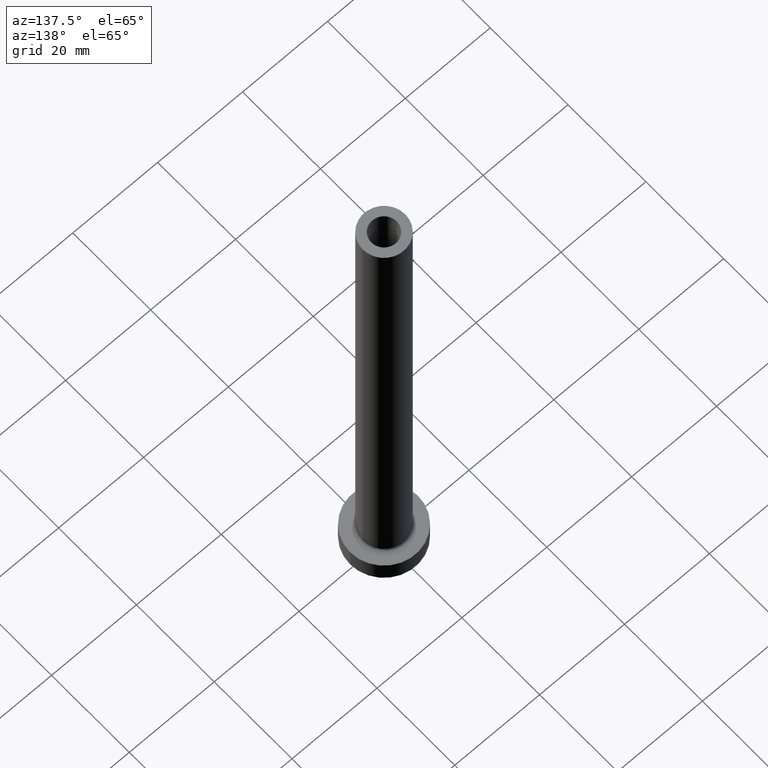
[diagram: clean part render]
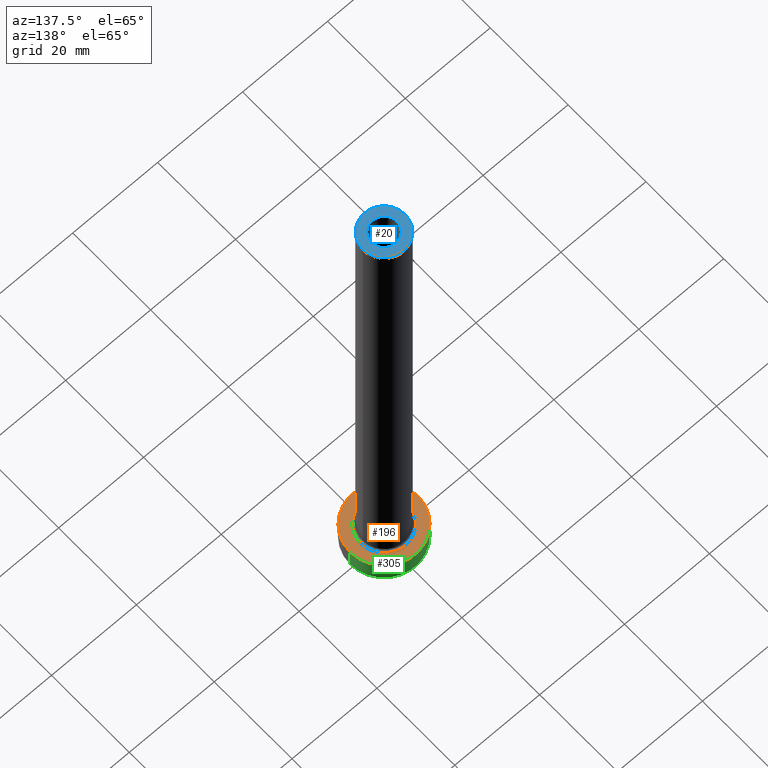
[diagram: same view with three faces highlighted in distinct colors, each labeled with its STEP entity id]
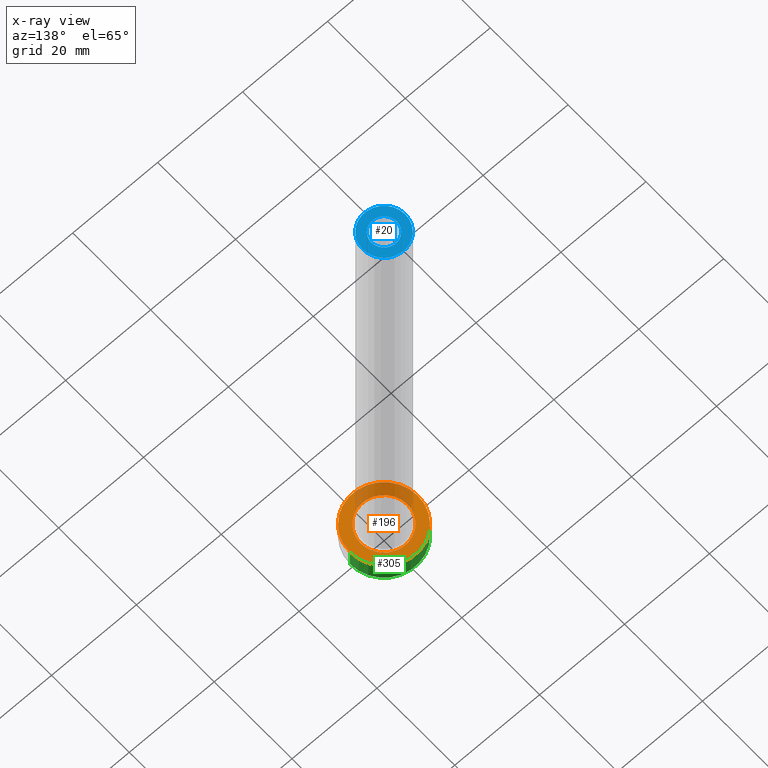
[diagram: x-ray of the same camera — body ghosted, the three highlighted faces saturated]
A machine part, auxiliary view with three faces highlighted in distinct colors.
The next image is the same camera in x-ray (body ghosted, the three faces saturated) — at least one of them is partly hidden behind the body in this view.
Their STEP definitions:

[orange] entity #196 — the highlighted planar face has unit normal (0, 0, 1).
#25 = ORIENTED_EDGE ( 'NONE', *, *, #400, .T. ) ;
#33 = DIRECTION ( 'NONE',  ( -0.000000000000000000, -0.000000000000000000, -1.000000000000000000 ) ) ;
#52 = CARTESIAN_POINT ( 'NONE',  ( 0.000000000000000000, 0.000000000000000000, 5.000000000000000000 ) ) ;
#63 = CARTESIAN_POINT ( 'NONE',  ( 0.000000000000000000, 0.000000000000000000, 5.000000000000000000 ) ) ;
#71 = DIRECTION ( 'NONE',  ( 0.000000000000000000, 0.000000000000000000, 1.000000000000000000 ) ) ;
#79 = EDGE_CURVE ( 'NONE', #93, #264, #250, .T. ) ;
#88 = ORIENTED_EDGE ( 'NONE', *, *, #296, .T. ) ;
#92 = CARTESIAN_POINT ( 'NONE',  ( -8.000000000000000000, 0.000000000000000000, 5.000000000000000000 ) ) ;
#93 = VERTEX_POINT ( 'NONE', #171 ) ;
#94 = CARTESIAN_POINT ( 'NONE',  ( 5.500000000000000000, 0.000000000000000000, 5.000000000000002665 ) ) ;
#104 = DIRECTION ( 'NONE',  ( 1.000000000000000000, 0.000000000000000000, 0.000000000000000000 ) ) ;
#105 = PLANE ( 'NONE',  #122 ) ;
#122 = AXIS2_PLACEMENT_3D ( 'NONE', #63, #386, #325 ) ;
#144 = FACE_OUTER_BOUND ( 'NONE', #326, .T. ) ;
#149 = AXIS2_PLACEMENT_3D ( 'NONE', #52, #416, #333 ) ;
#157 = EDGE_LOOP ( 'NONE', ( #25, #361 ) ) ;
#171 = CARTESIAN_POINT ( 'NONE',  ( -5.500000000000000000, 6.735557395310442023E-16, 5.000000000000002665 ) ) ;
#174 = VERTEX_POINT ( 'NONE', #374 ) ;
#187 = CIRCLE ( 'NONE', #241, 8.000000000000000000 ) ;
#196 = ADVANCED_FACE ( 'NONE', ( #408, #144 ), #105, .T. ) ;
#215 = AXIS2_PLACEMENT_3D ( 'NONE', #393, #71, #104 ) ;
#217 = DIRECTION ( 'NONE',  ( 0.000000000000000000, 0.000000000000000000, 1.000000000000000000 ) ) ;
#239 = CARTESIAN_POINT ( 'NONE',  ( 0.000000000000000000, 0.000000000000000000, 5.000000000000000000 ) ) ;
#241 = AXIS2_PLACEMENT_3D ( 'NONE', #432, #217, #320 ) ;
#248 = VERTEX_POINT ( 'NONE', #92 ) ;
#250 = CIRCLE ( 'NONE', #293, 5.500000000000000000 ) ;
#264 = VERTEX_POINT ( 'NONE', #94 ) ;
#288 = EDGE_CURVE ( 'NONE', #248, #174, #187, .T. ) ;
#293 = AXIS2_PLACEMENT_3D ( 'NONE', #239, #33, #312 ) ;
#296 = EDGE_CURVE ( 'NONE', #174, #248, #350, .T. ) ;
#312 = DIRECTION ( 'NONE',  ( 1.000000000000000000, 0.000000000000000000, 0.000000000000000000 ) ) ;
#320 = DIRECTION ( 'NONE',  ( 1.000000000000000000, 0.000000000000000000, 0.000000000000000000 ) ) ;
#325 = DIRECTION ( 'NONE',  ( 1.000000000000000000, 0.000000000000000000, -0.000000000000000000 ) ) ;
#326 = EDGE_LOOP ( 'NONE', ( #371, #88 ) ) ;
#333 = DIRECTION ( 'NONE',  ( 1.000000000000000000, 0.000000000000000000, 0.000000000000000000 ) ) ;
#350 = CIRCLE ( 'NONE', #215, 8.000000000000000000 ) ;
#361 = ORIENTED_EDGE ( 'NONE', *, *, #79, .T. ) ;
#364 = CIRCLE ( 'NONE', #149, 5.500000000000000000 ) ;
#371 = ORIENTED_EDGE ( 'NONE', *, *, #288, .T. ) ;
#374 = CARTESIAN_POINT ( 'NONE',  ( 8.000000000000000000, 9.797174393178825657E-16, 5.000000000000000000 ) ) ;
#386 = DIRECTION ( 'NONE',  ( 0.000000000000000000, 0.000000000000000000, 1.000000000000000000 ) ) ;
#393 = CARTESIAN_POINT ( 'NONE',  ( 0.000000000000000000, 0.000000000000000000, 5.000000000000000000 ) ) ;
#400 = EDGE_CURVE ( 'NONE', #264, #93, #364, .T. ) ;
#408 = FACE_BOUND ( 'NONE', #157, .T. ) ;
#416 = DIRECTION ( 'NONE',  ( -0.000000000000000000, -0.000000000000000000, -1.000000000000000000 ) ) ;
#432 = CARTESIAN_POINT ( 'NONE',  ( 0.000000000000000000, 0.000000000000000000, 5.000000000000000000 ) ) ;

[blue] entity #20 — the highlighted planar face has unit normal (0, 0, 1).
#13 = AXIS2_PLACEMENT_3D ( 'NONE', #294, #17, #107 ) ;
#17 = DIRECTION ( 'NONE',  ( 0.000000000000000000, 0.000000000000000000, 1.000000000000000000 ) ) ;
#20 = ADVANCED_FACE ( 'NONE', ( #167, #311 ), #27, .T. ) ;
#27 = PLANE ( 'NONE',  #357 ) ;
#42 = EDGE_CURVE ( 'NONE', #106, #191, #389, .T. ) ;
#43 = AXIS2_PLACEMENT_3D ( 'NONE', #353, #342, #385 ) ;
#53 = ORIENTED_EDGE ( 'NONE', *, *, #42, .T. ) ;
#55 = CIRCLE ( 'NONE', #13, 3.000000000000000444 ) ;
#82 = CARTESIAN_POINT ( 'NONE',  ( 0.000000000000000000, 0.000000000000000000, 125.0000000000000000 ) ) ;
#86 = CIRCLE ( 'NONE', #113, 5.000000000000000000 ) ;
#106 = VERTEX_POINT ( 'NONE', #243 ) ;
#107 = DIRECTION ( 'NONE',  ( 1.000000000000000000, 0.000000000000000000, 0.000000000000000000 ) ) ;
#111 = ORIENTED_EDGE ( 'NONE', *, *, #201, .F. ) ;
#112 = DIRECTION ( 'NONE',  ( 0.000000000000000000, 0.000000000000000000, 1.000000000000000000 ) ) ;
#113 = AXIS2_PLACEMENT_3D ( 'NONE', #82, #206, #362 ) ;
#158 = CIRCLE ( 'NONE', #329, 3.000000000000000444 ) ;
#167 = FACE_BOUND ( 'NONE', #347, .T. ) ;
#176 = CARTESIAN_POINT ( 'NONE',  ( -3.000000000000000444, 0.000000000000000000, 125.0000000000000000 ) ) ;
#185 = EDGE_CURVE ( 'NONE', #232, #271, #158, .T. ) ;
#190 = CARTESIAN_POINT ( 'NONE',  ( 3.000000000000000444, 3.673940397442059868E-16, 125.0000000000000000 ) ) ;
#191 = VERTEX_POINT ( 'NONE', #441 ) ;
#201 = EDGE_CURVE ( 'NONE', #271, #232, #55, .T. ) ;
#206 = DIRECTION ( 'NONE',  ( 0.000000000000000000, 0.000000000000000000, 1.000000000000000000 ) ) ;
#220 = EDGE_CURVE ( 'NONE', #191, #106, #86, .T. ) ;
#232 = VERTEX_POINT ( 'NONE', #190 ) ;
#234 = CARTESIAN_POINT ( 'NONE',  ( 0.000000000000000000, 0.000000000000000000, 125.0000000000000000 ) ) ;
#243 = CARTESIAN_POINT ( 'NONE',  ( 5.000000000000000000, 6.123233995736766282E-16, 125.0000000000000000 ) ) ;
#269 = DIRECTION ( 'NONE',  ( 1.000000000000000000, 0.000000000000000000, -0.000000000000000000 ) ) ;
#271 = VERTEX_POINT ( 'NONE', #176 ) ;
#290 = EDGE_LOOP ( 'NONE', ( #340, #53 ) ) ;
#294 = CARTESIAN_POINT ( 'NONE',  ( 0.000000000000000000, 0.000000000000000000, 125.0000000000000000 ) ) ;
#306 = DIRECTION ( 'NONE',  ( 0.000000000000000000, 0.000000000000000000, 1.000000000000000000 ) ) ;
#311 = FACE_OUTER_BOUND ( 'NONE', #290, .T. ) ;
#329 = AXIS2_PLACEMENT_3D ( 'NONE', #423, #112, #388 ) ;
#340 = ORIENTED_EDGE ( 'NONE', *, *, #220, .T. ) ;
#342 = DIRECTION ( 'NONE',  ( 0.000000000000000000, 0.000000000000000000, 1.000000000000000000 ) ) ;
#347 = EDGE_LOOP ( 'NONE', ( #111, #368 ) ) ;
#353 = CARTESIAN_POINT ( 'NONE',  ( 0.000000000000000000, 0.000000000000000000, 125.0000000000000000 ) ) ;
#357 = AXIS2_PLACEMENT_3D ( 'NONE', #234, #306, #269 ) ;
#362 = DIRECTION ( 'NONE',  ( 1.000000000000000000, 0.000000000000000000, 0.000000000000000000 ) ) ;
#368 = ORIENTED_EDGE ( 'NONE', *, *, #185, .F. ) ;
#385 = DIRECTION ( 'NONE',  ( 1.000000000000000000, 0.000000000000000000, 0.000000000000000000 ) ) ;
#388 = DIRECTION ( 'NONE',  ( 1.000000000000000000, 0.000000000000000000, 0.000000000000000000 ) ) ;
#389 = CIRCLE ( 'NONE', #43, 5.000000000000000000 ) ;
#423 = CARTESIAN_POINT ( 'NONE',  ( 0.000000000000000000, 0.000000000000000000, 125.0000000000000000 ) ) ;
#441 = CARTESIAN_POINT ( 'NONE',  ( -5.000000000000000000, 0.000000000000000000, 125.0000000000000000 ) ) ;

[green] entity #305 — the highlighted cylindrical surface (partial cylindrical patch) has radius 8 mm, axis along (-0, -0, -1).
#1 = VERTEX_POINT ( 'NONE', #303 ) ;
#29 = DIRECTION ( 'NONE',  ( -0.000000000000000000, -0.000000000000000000, -1.000000000000000000 ) ) ;
#36 = EDGE_CURVE ( 'NONE', #1, #380, #257, .T. ) ;
#56 = DIRECTION ( 'NONE',  ( 1.000000000000000000, 0.000000000000000000, 0.000000000000000000 ) ) ;
#57 = CYLINDRICAL_SURFACE ( 'NONE', #263, 8.000000000000000000 ) ;
#61 = ORIENTED_EDGE ( 'NONE', *, *, #36, .T. ) ;
#62 = LINE ( 'NONE', #209, #222 ) ;
#71 = DIRECTION ( 'NONE',  ( 0.000000000000000000, 0.000000000000000000, 1.000000000000000000 ) ) ;
#81 = ORIENTED_EDGE ( 'NONE', *, *, #343, .T. ) ;
#83 = CARTESIAN_POINT ( 'NONE',  ( 8.000000000000000000, 9.797174393178825657E-16, 5.000000000000000000 ) ) ;
#92 = CARTESIAN_POINT ( 'NONE',  ( -8.000000000000000000, 0.000000000000000000, 5.000000000000000000 ) ) ;
#104 = DIRECTION ( 'NONE',  ( 1.000000000000000000, 0.000000000000000000, 0.000000000000000000 ) ) ;
#119 = EDGE_CURVE ( 'NONE', #248, #380, #62, .T. ) ;
#124 = EDGE_LOOP ( 'NONE', ( #365, #81, #61, #132 ) ) ;
#132 = ORIENTED_EDGE ( 'NONE', *, *, #119, .F. ) ;
#174 = VERTEX_POINT ( 'NONE', #374 ) ;
#198 = CARTESIAN_POINT ( 'NONE',  ( -8.000000000000000000, 0.000000000000000000, 0.000000000000000000 ) ) ;
#209 = CARTESIAN_POINT ( 'NONE',  ( -8.000000000000000000, 0.000000000000000000, 5.000000000000000000 ) ) ;
#213 = AXIS2_PLACEMENT_3D ( 'NONE', #238, #376, #56 ) ;
#215 = AXIS2_PLACEMENT_3D ( 'NONE', #393, #71, #104 ) ;
#222 = VECTOR ( 'NONE', #29, 1000.000000000000000 ) ;
#238 = CARTESIAN_POINT ( 'NONE',  ( 0.000000000000000000, 0.000000000000000000, 0.000000000000000000 ) ) ;
#248 = VERTEX_POINT ( 'NONE', #92 ) ;
#257 = CIRCLE ( 'NONE', #213, 8.000000000000000000 ) ;
#263 = AXIS2_PLACEMENT_3D ( 'NONE', #297, #446, #450 ) ;
#296 = EDGE_CURVE ( 'NONE', #174, #248, #350, .T. ) ;
#297 = CARTESIAN_POINT ( 'NONE',  ( 0.000000000000000000, 0.000000000000000000, 5.000000000000000000 ) ) ;
#303 = CARTESIAN_POINT ( 'NONE',  ( 8.000000000000000000, 9.797174393178825657E-16, 0.000000000000000000 ) ) ;
#305 = ADVANCED_FACE ( 'NONE', ( #367 ), #57, .T. ) ;
#343 = EDGE_CURVE ( 'NONE', #174, #1, #404, .T. ) ;
#350 = CIRCLE ( 'NONE', #215, 8.000000000000000000 ) ;
#365 = ORIENTED_EDGE ( 'NONE', *, *, #296, .F. ) ;
#367 = FACE_OUTER_BOUND ( 'NONE', #124, .T. ) ;
#372 = DIRECTION ( 'NONE',  ( -0.000000000000000000, -0.000000000000000000, -1.000000000000000000 ) ) ;
#374 = CARTESIAN_POINT ( 'NONE',  ( 8.000000000000000000, 9.797174393178825657E-16, 5.000000000000000000 ) ) ;
#376 = DIRECTION ( 'NONE',  ( 0.000000000000000000, 0.000000000000000000, 1.000000000000000000 ) ) ;
#380 = VERTEX_POINT ( 'NONE', #198 ) ;
#393 = CARTESIAN_POINT ( 'NONE',  ( 0.000000000000000000, 0.000000000000000000, 5.000000000000000000 ) ) ;
#404 = LINE ( 'NONE', #83, #443 ) ;
#443 = VECTOR ( 'NONE', #372, 1000.000000000000000 ) ;
#446 = DIRECTION ( 'NONE',  ( -0.000000000000000000, -0.000000000000000000, -1.000000000000000000 ) ) ;
#450 = DIRECTION ( 'NONE',  ( -1.000000000000000000, 0.000000000000000000, 0.000000000000000000 ) ) ;